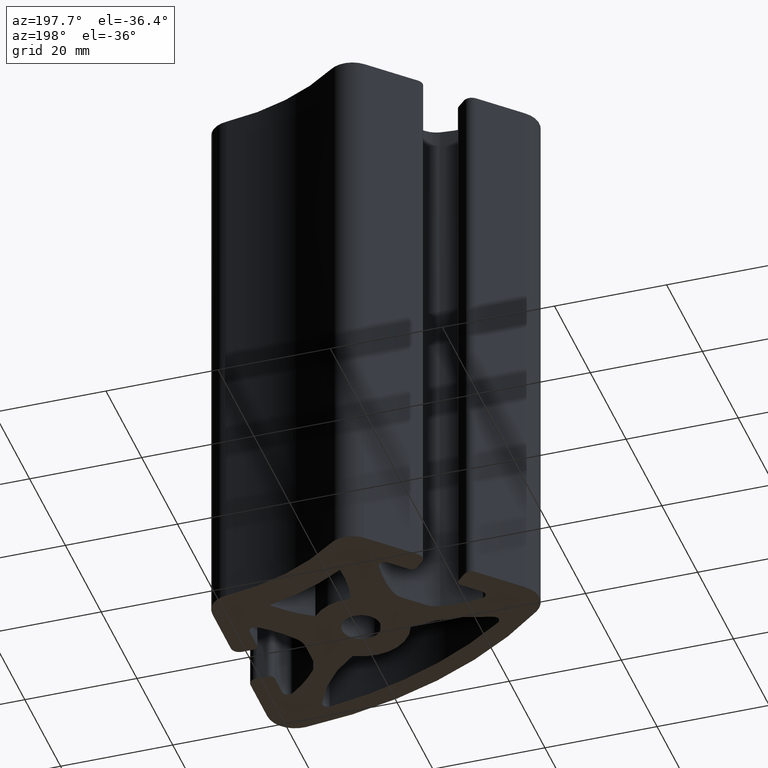
[diagram: clean part render]
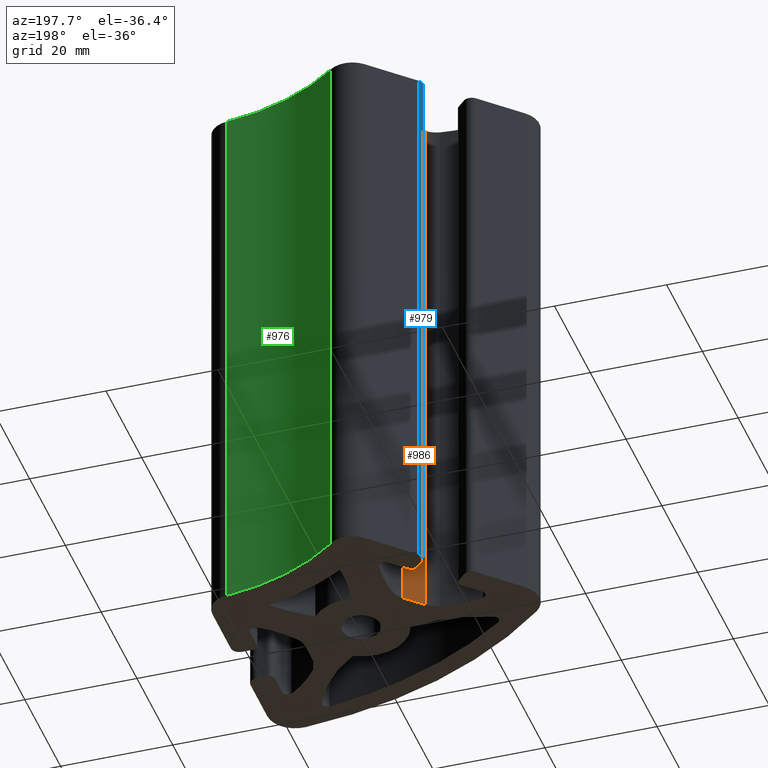
[diagram: same view with three faces highlighted in distinct colors, each labeled with its STEP entity id]
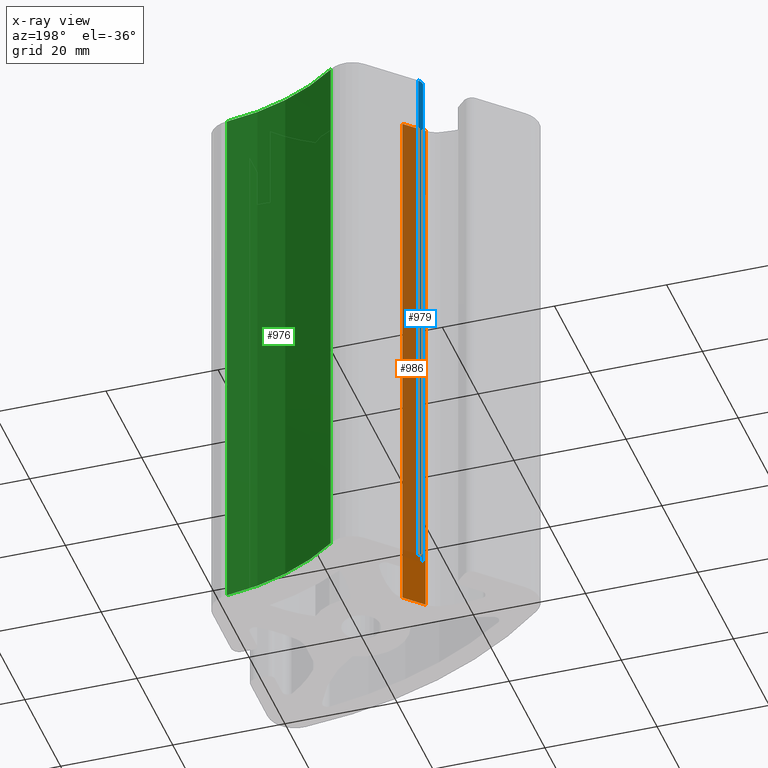
[diagram: x-ray of the same camera — body ghosted, the three highlighted faces saturated]
A machine part, auxiliary view with three faces highlighted in distinct colors.
The next image is the same camera in x-ray (body ghosted, the three faces saturated) — at least one of them is partly hidden behind the body in this view.
Their STEP definitions:

[orange] entity #986 — the highlighted planar face has unit normal (-0.7071, 0.7071, 0).
#25=PLANE('',#1055);
#48=FACE_OUTER_BOUND('',#101,.T.);
#101=EDGE_LOOP('',(#675,#676,#677,#678));
#167=LINE('',#1554,#245);
#168=LINE('',#1558,#246);
#169=LINE('',#1560,#247);
#170=LINE('',#1561,#248);
#245=VECTOR('',#1222,100.);
#246=VECTOR('',#1227,4.38611258266495);
#247=VECTOR('',#1228,100.);
#248=VECTOR('',#1229,4.38611258266495);
#401=VERTEX_POINT('',#1551);
#402=VERTEX_POINT('',#1553);
#403=VERTEX_POINT('',#1557);
#404=VERTEX_POINT('',#1559);
#512=EDGE_CURVE('',#401,#402,#167,.T.);
#514=EDGE_CURVE('',#401,#403,#168,.T.);
#515=EDGE_CURVE('',#403,#404,#169,.T.);
#516=EDGE_CURVE('',#402,#404,#170,.T.);
#675=ORIENTED_EDGE('',*,*,#514,.T.);
#676=ORIENTED_EDGE('',*,*,#515,.T.);
#677=ORIENTED_EDGE('',*,*,#516,.F.);
#678=ORIENTED_EDGE('',*,*,#512,.F.);
#986=ADVANCED_FACE('',(#48),#25,.T.);
#1055=AXIS2_PLACEMENT_3D('',#1556,#1225,#1226);
#1222=DIRECTION('',(0.,0.,1.));
#1225=DIRECTION('center_axis',(-0.707106729489276,0.707106832883816,0.));
#1226=DIRECTION('ref_axis',(0.,0.,1.));
#1227=DIRECTION('',(-0.707106832883816,-0.707106729489275,0.));
#1228=DIRECTION('',(0.,0.,1.));
#1229=DIRECTION('',(-0.707106832883816,-0.707106729489275,0.));
#1551=CARTESIAN_POINT('',(-9.2526174535401,5.89503266136762,0.));
#1553=CARTESIAN_POINT('',(-9.2526174535401,5.89503266136762,100.));
#1554=CARTESIAN_POINT('',(-9.2526174535401,5.89503266136762,0.));
#1556=CARTESIAN_POINT('Origin',(-9.2526174535401,5.89503266136762,0.));
#1557=CARTESIAN_POINT('',(-12.3540676305402,2.79358293786765,0.));
#1558=CARTESIAN_POINT('',(-9.2526174535401,5.89503266136762,0.));
#1559=CARTESIAN_POINT('',(-12.3540676305402,2.79358293786765,100.));
#1560=CARTESIAN_POINT('',(-12.3540676305402,2.79358293786765,0.));
#1561=CARTESIAN_POINT('',(-9.2526174535401,5.89503266136762,100.));

[blue] entity #979 — the highlighted cylindrical surface (edge-blend (fillet) strip) has radius 1.5 mm, axis along (0, 0, 1).
#41=FACE_OUTER_BOUND('',#94,.T.);
#94=EDGE_LOOP('',(#647,#648,#649,#650));
#155=LINE('',#1512,#233);
#157=LINE('',#1518,#235);
#233=VECTOR('',#1178,100.);
#235=VECTOR('',#1184,100.);
#311=CIRCLE('',#1039,1.5000000000009);
#312=CIRCLE('',#1040,1.5000000000009);
#387=VERTEX_POINT('',#1509);
#388=VERTEX_POINT('',#1511);
#389=VERTEX_POINT('',#1515);
#390=VERTEX_POINT('',#1517);
#491=EDGE_CURVE('',#387,#388,#155,.T.);
#493=EDGE_CURVE('',#387,#389,#311,.T.);
#494=EDGE_CURVE('',#389,#390,#157,.T.);
#495=EDGE_CURVE('',#388,#390,#312,.T.);
#647=ORIENTED_EDGE('',*,*,#493,.T.);
#648=ORIENTED_EDGE('',*,*,#494,.T.);
#649=ORIENTED_EDGE('',*,*,#495,.F.);
#650=ORIENTED_EDGE('',*,*,#491,.F.);
#941=CYLINDRICAL_SURFACE('',#1038,1.5000000000009);
#979=ADVANCED_FACE('',(#41),#941,.T.);
#1038=AXIS2_PLACEMENT_3D('',#1514,#1180,#1181);
#1039=AXIS2_PLACEMENT_3D('',#1516,#1182,#1183);
#1040=AXIS2_PLACEMENT_3D('',#1519,#1185,#1186);
#1178=DIRECTION('',(0.,0.,1.));
#1180=DIRECTION('center_axis',(0.,0.,1.));
#1181=DIRECTION('ref_axis',(-0.707106729496021,0.707106832877071,0.));
#1182=DIRECTION('center_axis',(0.,0.,1.));
#1183=DIRECTION('ref_axis',(-0.707106729496021,0.707106832877071,0.));
#1184=DIRECTION('',(0.,0.,1.));
#1185=DIRECTION('center_axis',(0.,0.,1.));
#1186=DIRECTION('ref_axis',(-0.707106729496021,0.707106832877071,0.));
#1509=CARTESIAN_POINT('',(-15.5763123974075,16.8954535143321,0.));
#1511=CARTESIAN_POINT('',(-15.5763123974075,16.8954535143321,100.));
#1512=CARTESIAN_POINT('',(-15.5763123974075,16.8954535143321,0.));
#1514=CARTESIAN_POINT('Origin',(-14.5156523031628,15.8347932650158,0.));
#1515=CARTESIAN_POINT('',(-15.5763125524772,14.7741331707693,0.));
#1516=CARTESIAN_POINT('Origin',(-14.5156523031628,15.8347932650158,0.));
#1517=CARTESIAN_POINT('',(-15.5763125524772,14.7741331707693,100.));
#1518=CARTESIAN_POINT('',(-15.5763125524772,14.7741331707693,0.));
#1519=CARTESIAN_POINT('Origin',(-14.5156523031628,15.8347932650158,100.));

[green] entity #976 — the highlighted cylindrical surface (partial cylindrical patch) has radius 40 mm, axis along (0, 0, -1).
#38=FACE_OUTER_BOUND('',#91,.T.);
#91=EDGE_LOOP('',(#635,#636,#637,#638));
#151=LINE('',#1498,#229);
#152=LINE('',#1501,#230);
#229=VECTOR('',#1164,100.);
#230=VECTOR('',#1167,100.);
#307=CIRCLE('',#1032,40.0000000000008);
#308=CIRCLE('',#1033,40.0000000000008);
#381=VERTEX_POINT('',#1494);
#382=VERTEX_POINT('',#1495);
#383=VERTEX_POINT('',#1497);
#384=VERTEX_POINT('',#1499);
#483=EDGE_CURVE('',#381,#382,#307,.T.);
#484=EDGE_CURVE('',#382,#383,#151,.T.);
#485=EDGE_CURVE('',#384,#383,#308,.T.);
#486=EDGE_CURVE('',#381,#384,#152,.T.);
#635=ORIENTED_EDGE('',*,*,#483,.T.);
#636=ORIENTED_EDGE('',*,*,#484,.T.);
#637=ORIENTED_EDGE('',*,*,#485,.F.);
#638=ORIENTED_EDGE('',*,*,#486,.F.);
#939=CYLINDRICAL_SURFACE('',#1031,40.0000000000008);
#976=ADVANCED_FACE('',(#38),#939,.F.);
#1031=AXIS2_PLACEMENT_3D('',#1493,#1160,#1161);
#1032=AXIS2_PLACEMENT_3D('',#1496,#1162,#1163);
#1033=AXIS2_PLACEMENT_3D('',#1500,#1165,#1166);
#1160=DIRECTION('center_axis',(0.,0.,-1.));
#1161=DIRECTION('ref_axis',(-0.099099154706139,-0.995077563578101,0.));
#1162=DIRECTION('center_axis',(0.,0.,-1.));
#1163=DIRECTION('ref_axis',(-0.63355250861249,-0.773699695509066,0.));
#1164=DIRECTION('',(0.,0.,1.));
#1165=DIRECTION('center_axis',(0.,0.,-1.));
#1166=DIRECTION('ref_axis',(-0.63355250861249,-0.773699695509066,0.));
#1167=DIRECTION('',(0.,0.,1.));
#1493=CARTESIAN_POINT('Origin',(22.9610099940653,55.4327702721735,0.));
#1494=CARTESIAN_POINT('',(18.9970438058197,15.6296677290487,0.));
#1495=CARTESIAN_POINT('',(-2.38109035043476,24.4847824518103,0.));
#1496=CARTESIAN_POINT('Origin',(22.9610099940653,55.4327702721734,0.));
#1497=CARTESIAN_POINT('',(-2.38109035043476,24.4847824518103,100.));
#1498=CARTESIAN_POINT('',(-2.38109035043476,24.4847824518103,0.));
#1499=CARTESIAN_POINT('',(18.9970438058197,15.6296677290487,100.));
#1500=CARTESIAN_POINT('Origin',(22.9610099940653,55.4327702721734,100.));
#1501=CARTESIAN_POINT('',(18.9970438058197,15.6296677290487,0.));